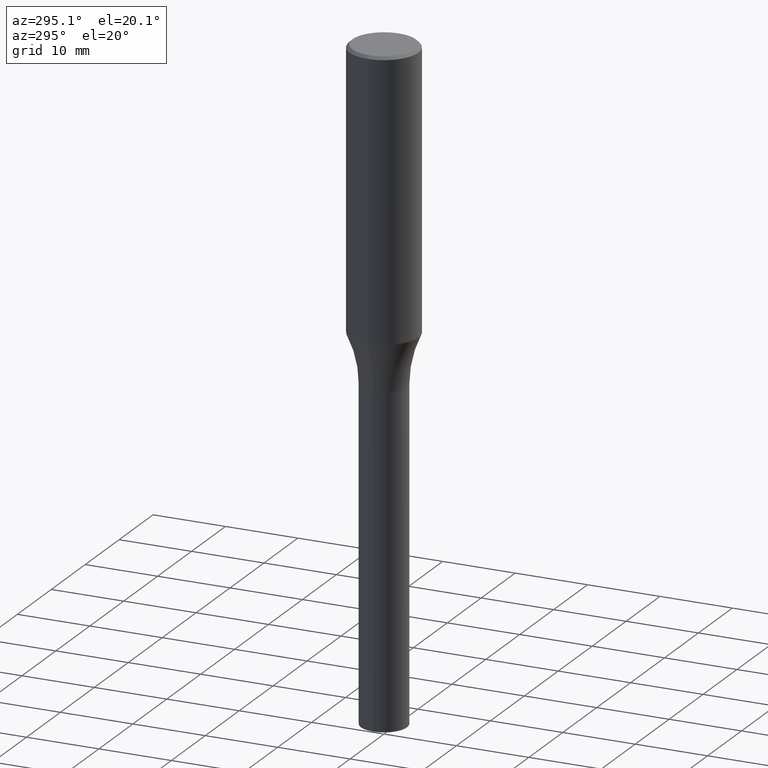
[diagram: clean part render]
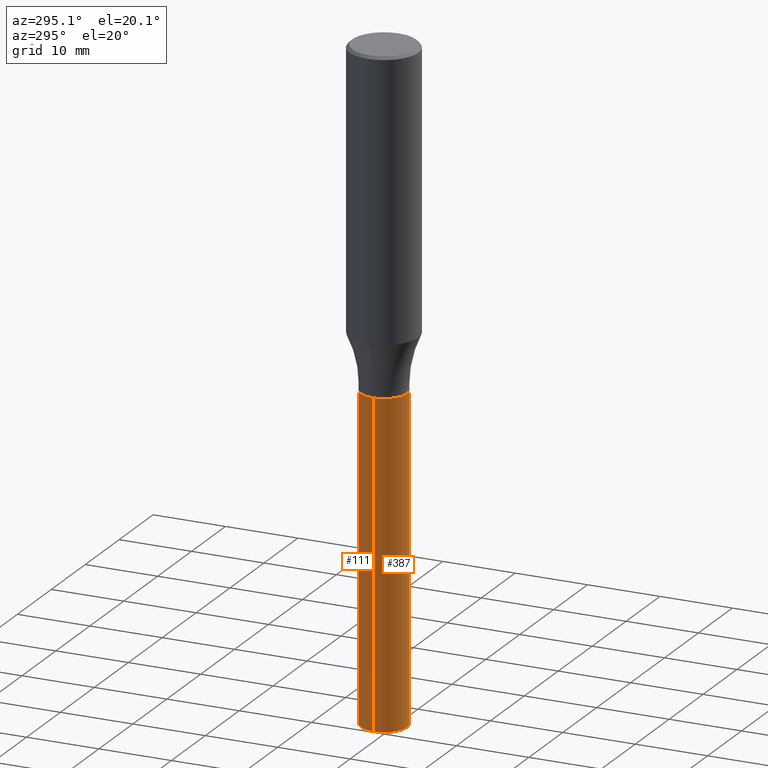
[diagram: same view with one multi-face feature highlighted, each face labeled with its STEP entity id]
A machine part, auxiliary view. The highlighted faces form ONE feature: a constant-radius fillet chain: 2 tangent blend faces with common blend radius 3.175 mm. The faces share edges in the B-rep.
Their STEP definitions:
[1] entity #111 (Cylinder):
#3 = VERTEX_POINT ( 'NONE', #279 ) ;
#18 = CARTESIAN_POINT ( 'NONE',  ( 4.431189476807466720E-29, -6.326564185983779002E-15, -1.811999999999999611 ) ) ;
#29 = EDGE_CURVE ( 'NONE', #451, #195, #353, .T. ) ;
#48 = DIRECTION ( 'NONE',  ( -2.445468806185136877E-29, 3.491481338843145188E-15, 1.000000000000000000 ) ) ;
#79 = DIRECTION ( 'NONE',  ( 1.000000000000000000, -6.982962677686267499E-15, 4.876176775795936353E-29 ) ) ;
#90 = CARTESIAN_POINT ( 'NONE',  ( 0.1250000000000000555, -1.330952686367006701E-14, -3.561999999999999833 ) ) ;
#101 = VECTOR ( 'NONE', #48, 39.37007874015748143 ) ;
#111 = ADVANCED_FACE ( 'NONE', ( #258 ), #165, .T. ) ;
#117 = LINE ( 'NONE', #293, #101 ) ;
#135 = EDGE_CURVE ( 'NONE', #234, #3, #256, .T. ) ;
#160 = ORIENTED_EDGE ( 'NONE', *, *, #356, .T. ) ;
#165 = CYLINDRICAL_SURFACE ( 'NONE', #286, 0.1250000000000000555 ) ;
#189 = DIRECTION ( 'NONE',  ( -2.445468806185136877E-29, 3.491481338843145188E-15, 1.000000000000000000 ) ) ;
#195 = VERTEX_POINT ( 'NONE', #215 ) ;
#214 = DIRECTION ( 'NONE',  ( 1.000000000000000000, -6.982962677686259611E-15, 0.000000000000000000 ) ) ;
#215 = CARTESIAN_POINT ( 'NONE',  ( -0.1250000000000000555, -8.493431937771405711E-15, -3.561999999999999833 ) ) ;
#219 = DIRECTION ( 'NONE',  ( -2.445468806185136597E-29, 3.491481338843145583E-15, 1.000000000000000000 ) ) ;
#234 = VERTEX_POINT ( 'NONE', #321 ) ;
#249 = DIRECTION ( 'NONE',  ( -2.445468806185136597E-29, 3.491481338843145583E-15, 1.000000000000000000 ) ) ;
#255 = ORIENTED_EDGE ( 'NONE', *, *, #135, .F. ) ;
#256 = CIRCLE ( 'NONE', #368, 0.1250000000000000555 ) ;
#258 = FACE_OUTER_BOUND ( 'NONE', #299, .T. ) ;
#268 = AXIS2_PLACEMENT_3D ( 'NONE', #314, #249, #214 ) ;
#279 = CARTESIAN_POINT ( 'NONE',  ( -0.1250000000000000555, -8.493431937771405711E-15, -1.811999999999999611 ) ) ;
#286 = AXIS2_PLACEMENT_3D ( 'NONE', #326, #301, #79 ) ;
#293 = CARTESIAN_POINT ( 'NONE',  ( -0.1250000000000000555, 8.881784197001256268E-16, -6.148668862818635730E-30 ) ) ;
#299 = EDGE_LOOP ( 'NONE', ( #363, #160, #255, #437 ) ) ;
#301 = DIRECTION ( 'NONE',  ( -2.445468806185136597E-29, 3.491481338843145583E-15, 1.000000000000000000 ) ) ;
#314 = CARTESIAN_POINT ( 'NONE',  ( 8.710759887631456325E-29, -1.243665652895928367E-14, -3.561999999999999833 ) ) ;
#321 = CARTESIAN_POINT ( 'NONE',  ( 0.1250000000000000555, -7.199434520694563130E-15, -1.811999999999999611 ) ) ;
#326 = CARTESIAN_POINT ( 'NONE',  ( 0.000000000000000000, 0.000000000000000000, 0.000000000000000000 ) ) ;
#353 = CIRCLE ( 'NONE', #268, 0.1250000000000000555 ) ;
#356 = EDGE_CURVE ( 'NONE', #195, #3, #117, .T. ) ;
#358 = LINE ( 'NONE', #427, #404 ) ;
#363 = ORIENTED_EDGE ( 'NONE', *, *, #29, .T. ) ;
#368 = AXIS2_PLACEMENT_3D ( 'NONE', #18, #219, #405 ) ;
#404 = VECTOR ( 'NONE', #189, 39.37007874015748143 ) ;
#405 = DIRECTION ( 'NONE',  ( 1.000000000000000000, -6.982962677686267499E-15, 0.000000000000000000 ) ) ;
#409 = EDGE_CURVE ( 'NONE', #451, #234, #358, .T. ) ;
#427 = CARTESIAN_POINT ( 'NONE',  ( 0.1250000000000000555, -8.728703347107838319E-16, 6.095220969744923244E-30 ) ) ;
#437 = ORIENTED_EDGE ( 'NONE', *, *, #409, .F. ) ;
#451 = VERTEX_POINT ( 'NONE', #90 ) ;
[2] entity #387 (Cylinder):
#1 = ORIENTED_EDGE ( 'NONE', *, *, #356, .F. ) ;
#3 = VERTEX_POINT ( 'NONE', #279 ) ;
#24 = ORIENTED_EDGE ( 'NONE', *, *, #203, .T. ) ;
#39 = DIRECTION ( 'NONE',  ( 1.000000000000000000, -6.982962677686259611E-15, 0.000000000000000000 ) ) ;
#41 = CYLINDRICAL_SURFACE ( 'NONE', #354, 0.1250000000000000555 ) ;
#48 = DIRECTION ( 'NONE',  ( -2.445468806185136877E-29, 3.491481338843145188E-15, 1.000000000000000000 ) ) ;
#63 = AXIS2_PLACEMENT_3D ( 'NONE', #337, #442, #305 ) ;
#90 = CARTESIAN_POINT ( 'NONE',  ( 0.1250000000000000555, -1.330952686367006701E-14, -3.561999999999999833 ) ) ;
#101 = VECTOR ( 'NONE', #48, 39.37007874015748143 ) ;
#117 = LINE ( 'NONE', #293, #101 ) ;
#125 = EDGE_LOOP ( 'NONE', ( #1, #24, #221, #297 ) ) ;
#133 = EDGE_CURVE ( 'NONE', #3, #234, #136, .T. ) ;
#136 = CIRCLE ( 'NONE', #63, 0.1250000000000000555 ) ;
#186 = CARTESIAN_POINT ( 'NONE',  ( 0.000000000000000000, 0.000000000000000000, 0.000000000000000000 ) ) ;
#189 = DIRECTION ( 'NONE',  ( -2.445468806185136877E-29, 3.491481338843145188E-15, 1.000000000000000000 ) ) ;
#195 = VERTEX_POINT ( 'NONE', #215 ) ;
#203 = EDGE_CURVE ( 'NONE', #195, #451, #382, .T. ) ;
#215 = CARTESIAN_POINT ( 'NONE',  ( -0.1250000000000000555, -8.493431937771405711E-15, -3.561999999999999833 ) ) ;
#217 = FACE_OUTER_BOUND ( 'NONE', #125, .T. ) ;
#221 = ORIENTED_EDGE ( 'NONE', *, *, #409, .T. ) ;
#234 = VERTEX_POINT ( 'NONE', #321 ) ;
#279 = CARTESIAN_POINT ( 'NONE',  ( -0.1250000000000000555, -8.493431937771405711E-15, -1.811999999999999611 ) ) ;
#283 = CARTESIAN_POINT ( 'NONE',  ( 8.710759887631456325E-29, -1.243665652895928367E-14, -3.561999999999999833 ) ) ;
#290 = DIRECTION ( 'NONE',  ( 1.000000000000000000, -6.982962677686267499E-15, 4.876176775795936353E-29 ) ) ;
#293 = CARTESIAN_POINT ( 'NONE',  ( -0.1250000000000000555, 8.881784197001256268E-16, -6.148668862818635730E-30 ) ) ;
#297 = ORIENTED_EDGE ( 'NONE', *, *, #133, .F. ) ;
#305 = DIRECTION ( 'NONE',  ( 1.000000000000000000, -6.982962677686267499E-15, 0.000000000000000000 ) ) ;
#321 = CARTESIAN_POINT ( 'NONE',  ( 0.1250000000000000555, -7.199434520694563130E-15, -1.811999999999999611 ) ) ;
#337 = CARTESIAN_POINT ( 'NONE',  ( 4.431189476807466720E-29, -6.326564185983779002E-15, -1.811999999999999611 ) ) ;
#345 = AXIS2_PLACEMENT_3D ( 'NONE', #283, #429, #39 ) ;
#354 = AXIS2_PLACEMENT_3D ( 'NONE', #186, #403, #290 ) ;
#356 = EDGE_CURVE ( 'NONE', #195, #3, #117, .T. ) ;
#358 = LINE ( 'NONE', #427, #404 ) ;
#382 = CIRCLE ( 'NONE', #345, 0.1250000000000000555 ) ;
#387 = ADVANCED_FACE ( 'NONE', ( #217 ), #41, .T. ) ;
#403 = DIRECTION ( 'NONE',  ( -2.445468806185136597E-29, 3.491481338843145583E-15, 1.000000000000000000 ) ) ;
#404 = VECTOR ( 'NONE', #189, 39.37007874015748143 ) ;
#409 = EDGE_CURVE ( 'NONE', #451, #234, #358, .T. ) ;
#427 = CARTESIAN_POINT ( 'NONE',  ( 0.1250000000000000555, -8.728703347107838319E-16, 6.095220969744923244E-30 ) ) ;
#429 = DIRECTION ( 'NONE',  ( -2.445468806185136597E-29, 3.491481338843145583E-15, 1.000000000000000000 ) ) ;
#442 = DIRECTION ( 'NONE',  ( -2.445468806185136597E-29, 3.491481338843145583E-15, 1.000000000000000000 ) ) ;
#451 = VERTEX_POINT ( 'NONE', #90 ) ;